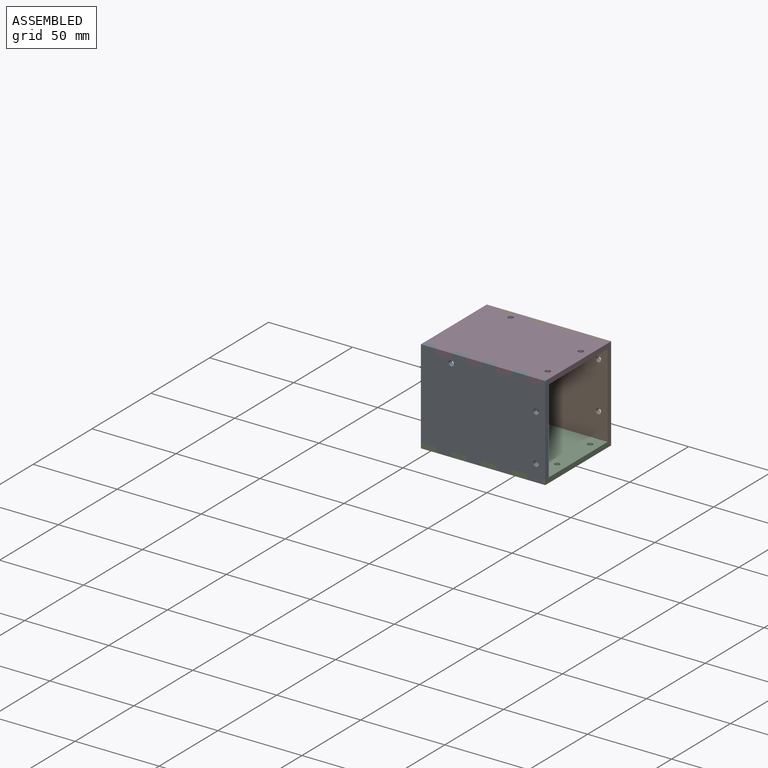
[diagram: assembled view]
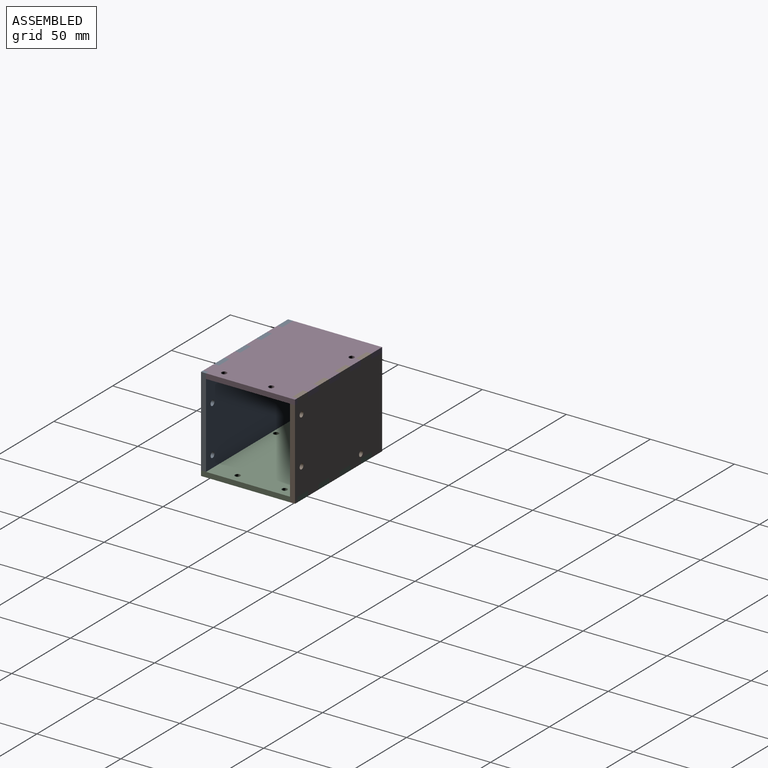
[diagram: assembled view, second angle]
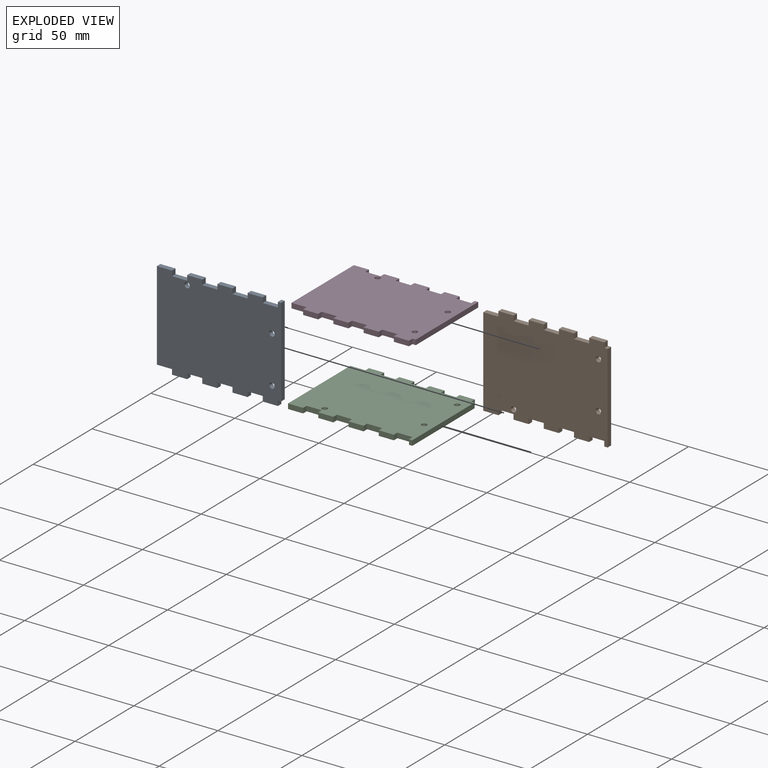
[diagram: exploded view]
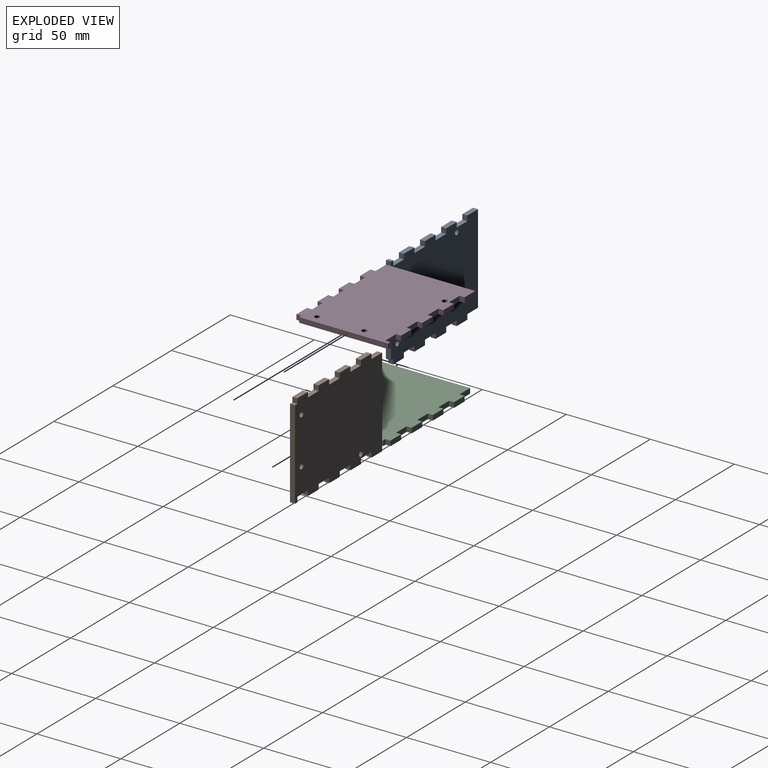
[diagram: exploded view, second angle]
ASSEMBLY  parts=4 mates=3
PART A: 41 faces, bbox 74x56x3 mm
  f0: plane 53x3mm, normal (-1,0,0), area 159mm2, adj f1,f37,f39,f40
  f1: plane 9x3mm, normal (0,-1,0), area 27mm2, adj f0,f2,f39,f40
  f2: plane 3x3mm, normal (-1,0,0), area 9mm2, adj f1,f3,f39,f40
  f3: plane 9x3mm, normal (0,-1,0), area 27mm2, adj f2,f4,f39,f40
  f4: plane 3x3mm, normal (1,0,0), area 9mm2, adj f3,f5,f39,f40
  f5: plane 9x3mm, normal (0,-1,0), area 27mm2, adj f4,f6,f39,f40
  f6: plane 3x3mm, normal (-1,0,0), area 9mm2, adj f5,f7,f39,f40
  f7: plane 9x3mm, normal (0,-1,0), area 27mm2, adj f6,f8,f39,f40
  f8: plane 3x3mm, normal (1,0,0), area 9mm2, adj f7,f9,f39,f40
  f9: plane 9x3mm, normal (0,-1,0), area 27mm2, adj f8,f10,f39,f40
  f10: plane 3x3mm, normal (-1,0,0), area 9mm2, adj f9,f11,f39,f40
  f11: plane 9x3mm, normal (0,-1,0), area 27mm2, adj f10,f12,f39,f40
  f12: plane 3x3mm, normal (1,0,0), area 9mm2, adj f11,f13,f39,f40
  f13: plane 9x3mm, normal (0,-1,0), area 27mm2, adj f12,f14,f39,f40
  f14: plane 3x3mm, normal (-1,0,0), area 9mm2, adj f13,f15,f39,f40
  f15: plane 9x3mm, normal (0,-1,0), area 27mm2, adj f14,f16,f39,f40
  f16: plane 3x3mm, normal (1,0,0), area 9mm2, adj f15,f17,f39,f40
  f17: plane 3x2mm, normal (0,-1,0), area 6mm2, adj f16,f18,f39,f40
  f18: plane 53x3mm, normal (1,0,0), area 159mm2, adj f17,f19,f39,f40
  f19: plane 3x2mm, normal (0,1,0), area 6mm2, adj f18,f20,f39,f40
  f20: plane 3x3mm, normal (-1,0,0), area 9mm2, adj f19,f21,f39,f40
  f21: plane 9x3mm, normal (0,1,0), area 27mm2, adj f20,f22,f39,f40
  f22: plane 3x3mm, normal (1,0,0), area 9mm2, adj f21,f23,f39,f40
  f23: plane 9x3mm, normal (0,1,0), area 27mm2, adj f22,f24,f39,f40
  f24: plane 3x3mm, normal (-1,0,0), area 9mm2, adj f23,f25,f39,f40
  f25: plane 9x3mm, normal (0,1,0), area 27mm2, adj f24,f26,f39,f40
  f26: plane 3x3mm, normal (1,0,0), area 9mm2, adj f25,f27,f39,f40
  f27: plane 9x3mm, normal (0,1,0), area 27mm2, adj f26,f28,f39,f40
  f28: plane 3x3mm, normal (-1,0,0), area 9mm2, adj f27,f29,f39,f40
  f29: plane 9x3mm, normal (0,1,0), area 27mm2, adj f28,f30,f39,f40
  f30: plane 3x3mm, normal (1,0,0), area 9mm2, adj f29,f31,f39,f40
  f31: plane 9x3mm, normal (0,1,0), area 27mm2, adj f30,f32,f39,f40
  f32: plane 3x3mm, normal (-1,0,0), area 9mm2, adj f31,f33,f39,f40
  f33: plane 9x3mm, normal (0,1,0), area 27mm2, adj f32,f34,f39,f40
  f34: plane 3x3mm, normal (1,0,0), area 9mm2, adj f33,f37,f39,f40
  f35: cylinder r=1.6mm len=3.2mm, axis (0,0,-1), area 30.2mm2, adj f39,f40
  f36: cylinder r=1.6mm len=3.2mm, axis (0,0,-1), area 30.2mm2, adj f39,f40
  f37: plane 9x3mm, normal (0,1,0), area 27mm2, adj f0,f34,f39,f40
  f38: cylinder r=1.6mm len=3.2mm, axis (0,0,-1), area 30.2mm2, adj f39,f40
  f39: plane 74x56mm, normal (0,0,1), area 3897.9mm2, adj f0,f1,f2,f3,f4,f5,f6,f7
  f40: plane 74x56mm, normal (0,0,-1), area 3897.9mm2, adj f0,f1,f2,f3,f4,f5,f6,f7
PART B: same geometry as A
PART C: same geometry as A
PART D: same geometry as A
PLACE A rot(axis=(1,0,0),90deg) t=(-29.84,-16.78,12.18)mm
PLACE B rot(axis=(-1,0,0),90deg) t=(-29.84,33.22,12.18)mm
PLACE C rot(axis=(-1,0,0),180deg) t=(-29.84,8.22,-12.82)mm
PLACE D t=(-29.84,8.22,37.18)mm
MATE parallel C.f16 <-> B.f20  axis (1,0,0) through (1.66,34.72,-14.32)mm
MATE parallel B.f14 <-> D.f22  axis (-1,0,0) through (-7.34,34.72,38.68)mm
MATE parallel A.f34 <-> D.f2  axis (1,0,0) through (-61.34,-18.28,38.68)mm
